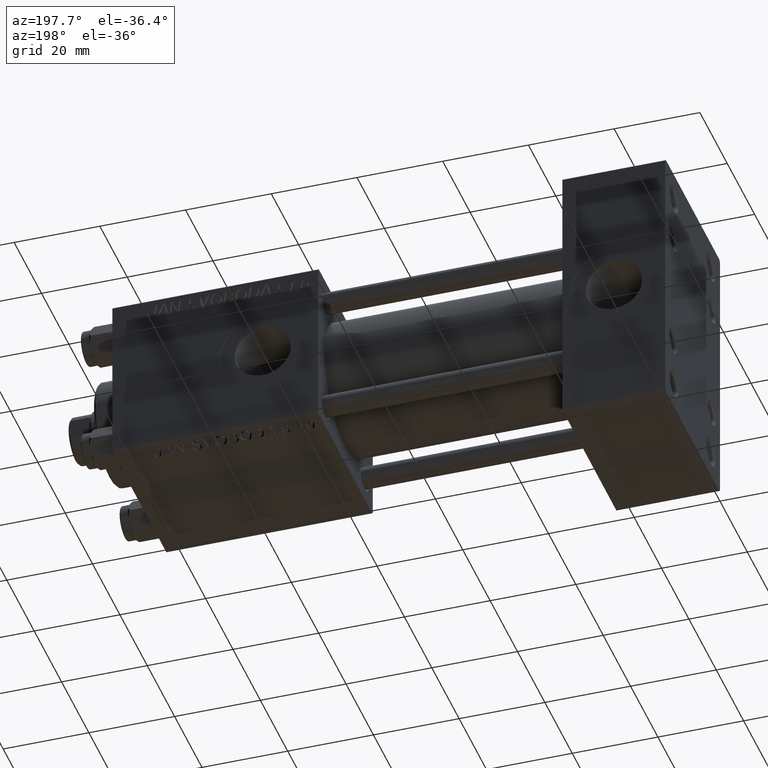
[diagram: clean part render]
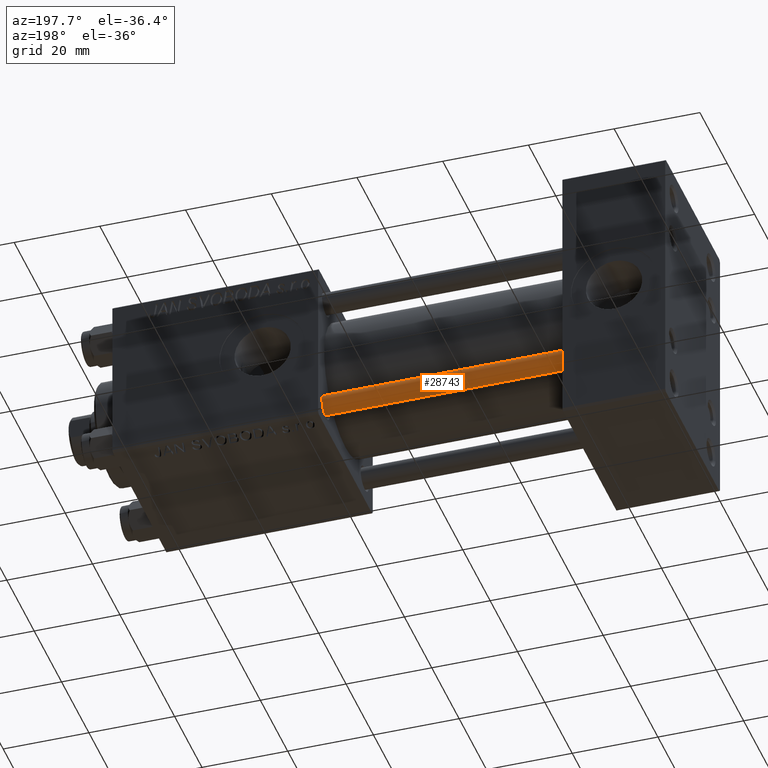
[diagram: same view with one face highlighted and labeled with its STEP entity id]
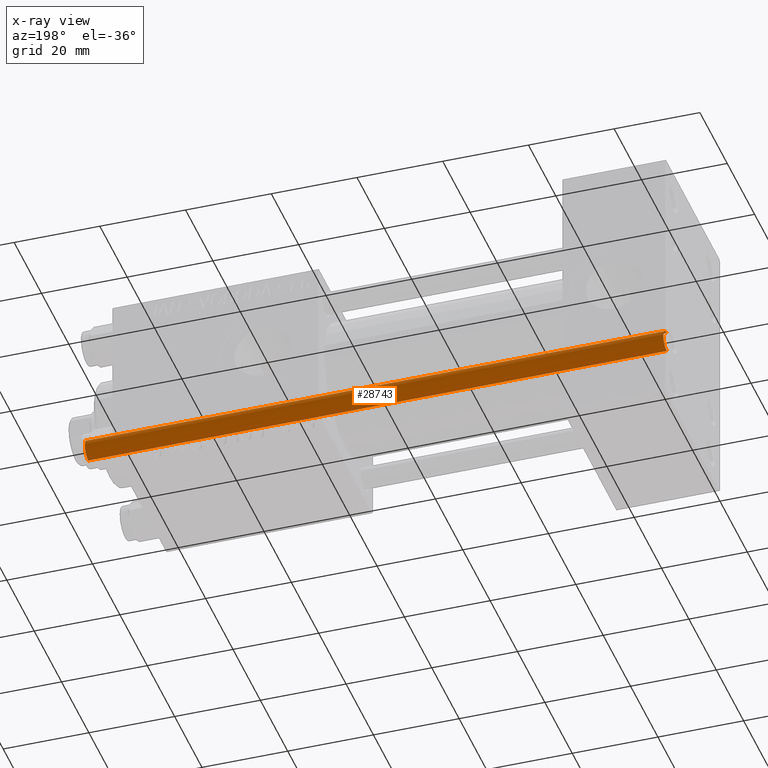
[diagram: x-ray of the same camera — body ghosted, the highlighted face saturated]
A machine part, auxiliary view. The second image highlights one B-rep face of the part: STEP entity #28743.
The next image is the same camera in x-ray: the body ghosted, the highlighted face saturated — about 0% of this face is hidden behind the body in this view.
In plain terms, the highlighted cylindrical surface (edge-blend (fillet) strip) has radius 2.5 mm, axis along (-1, 0, 0).
Its self-contained STEP definition (entity closure, byte-faithful):
#298 = VERTEX_POINT ( 'NONE', #12593 ) ;
#1174 = CIRCLE ( 'NONE', #34461, 2.500000000000000000 ) ;
#2740 = LINE ( 'NONE', #45145, #21225 ) ;
#2917 = EDGE_CURVE ( 'NONE', #32384, #298, #2740, .T. ) ;
#6637 = CARTESIAN_POINT ( 'NONE',  ( 0.000000000000000000, 0.000000000000000000, 136.0000000000000000 ) ) ;
#10274 = CARTESIAN_POINT ( 'NONE',  ( -2.500000000000000000, 0.000000000000000000, 135.5000000000000000 ) ) ;
#10588 = EDGE_LOOP ( 'NONE', ( #37848, #18127, #14590, #45656 ) ) ;
#11185 = FACE_OUTER_BOUND ( 'NONE', #10588, .T. ) ;
#11325 = EDGE_CURVE ( 'NONE', #26888, #45679, #45974, .T. ) ;
#12593 = CARTESIAN_POINT ( 'NONE',  ( -2.500000000000000000, 0.000000000000000000, 0.5000000000000004441 ) ) ;
#13692 = DIRECTION ( 'NONE',  ( 0.000000000000000000, 0.000000000000000000, -1.000000000000000000 ) ) ;
#14590 = ORIENTED_EDGE ( 'NONE', *, *, #2917, .T. ) ;
#18127 = ORIENTED_EDGE ( 'NONE', *, *, #38757, .T. ) ;
#18952 = VECTOR ( 'NONE', #48990, 1000.000000000000000 ) ;
#18990 = DIRECTION ( 'NONE',  ( -0.000000000000000000, -0.000000000000000000, -1.000000000000000000 ) ) ;
#21225 = VECTOR ( 'NONE', #44883, 1000.000000000000000 ) ;
#25131 = CARTESIAN_POINT ( 'NONE',  ( 2.500000000000000000, 3.061616997868383141E-16, 135.5000000000000000 ) ) ;
#26046 = CARTESIAN_POINT ( 'NONE',  ( 0.000000000000000000, 0.000000000000000000, 135.5000000000000000 ) ) ;
#26299 = DIRECTION ( 'NONE',  ( 1.000000000000000000, 0.000000000000000000, 0.000000000000000000 ) ) ;
#26767 = CARTESIAN_POINT ( 'NONE',  ( 2.500000000000000000, 3.061616997868383141E-16, 136.0000000000000000 ) ) ;
#26888 = VERTEX_POINT ( 'NONE', #25131 ) ;
#28242 = CIRCLE ( 'NONE', #44396, 2.500000000000000000 ) ;
#28743 = ADVANCED_FACE ( 'NONE', ( #11185 ), #38183, .T. ) ;
#31952 = DIRECTION ( 'NONE',  ( -0.000000000000000000, -0.000000000000000000, 1.000000000000000000 ) ) ;
#32384 = VERTEX_POINT ( 'NONE', #10274 ) ;
#34461 = AXIS2_PLACEMENT_3D ( 'NONE', #35002, #31952, #43558 ) ;
#35002 = CARTESIAN_POINT ( 'NONE',  ( 0.000000000000000000, 0.000000000000000000, 0.5000000000000004441 ) ) ;
#35834 = CARTESIAN_POINT ( 'NONE',  ( 2.500000000000000000, 3.061616997868383141E-16, 0.5000000000000004441 ) ) ;
#36120 = AXIS2_PLACEMENT_3D ( 'NONE', #6637, #18990, #42218 ) ;
#37848 = ORIENTED_EDGE ( 'NONE', *, *, #11325, .F. ) ;
#38183 = CYLINDRICAL_SURFACE ( 'NONE', #36120, 2.500000000000000000 ) ;
#38757 = EDGE_CURVE ( 'NONE', #26888, #32384, #28242, .T. ) ;
#42218 = DIRECTION ( 'NONE',  ( -1.000000000000000000, 0.000000000000000000, 0.000000000000000000 ) ) ;
#43558 = DIRECTION ( 'NONE',  ( 1.000000000000000000, 0.000000000000000000, 0.000000000000000000 ) ) ;
#44396 = AXIS2_PLACEMENT_3D ( 'NONE', #26046, #13692, #26299 ) ;
#44883 = DIRECTION ( 'NONE',  ( -0.000000000000000000, -0.000000000000000000, -1.000000000000000000 ) ) ;
#45145 = CARTESIAN_POINT ( 'NONE',  ( -2.500000000000000000, 0.000000000000000000, 136.0000000000000000 ) ) ;
#45656 = ORIENTED_EDGE ( 'NONE', *, *, #49212, .T. ) ;
#45679 = VERTEX_POINT ( 'NONE', #35834 ) ;
#45974 = LINE ( 'NONE', #26767, #18952 ) ;
#48990 = DIRECTION ( 'NONE',  ( -0.000000000000000000, -0.000000000000000000, -1.000000000000000000 ) ) ;
#49212 = EDGE_CURVE ( 'NONE', #298, #45679, #1174, .T. ) ;